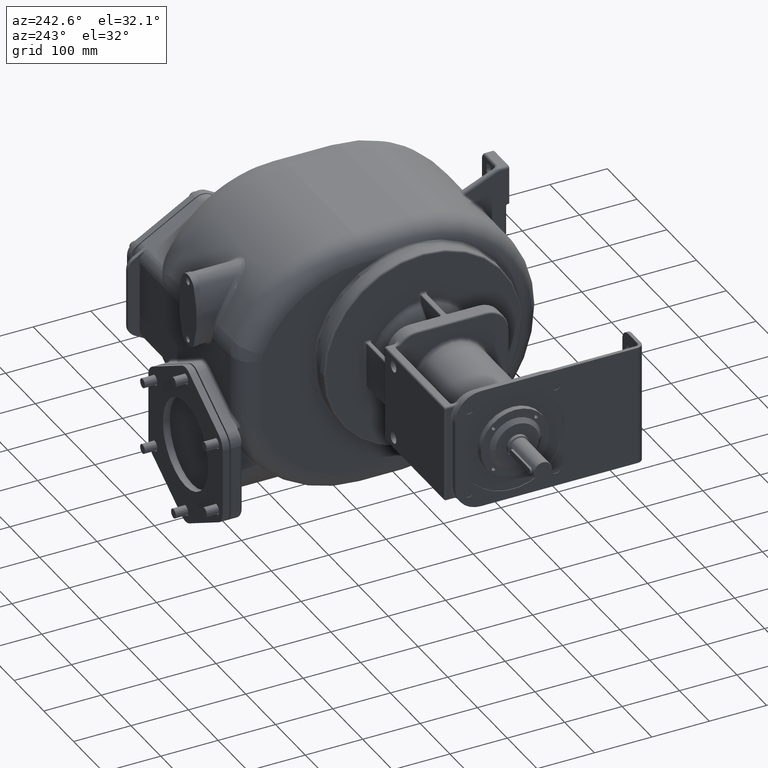
[diagram: clean part render]
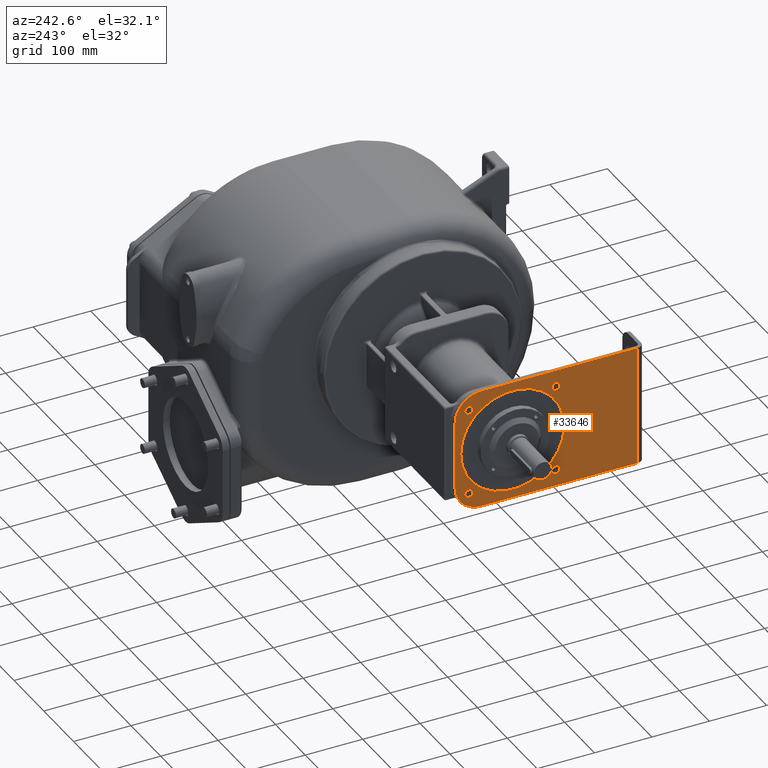
[diagram: same view with one face highlighted and labeled with its STEP entity id]
A machine part, auxiliary view. The second image highlights one B-rep face of the part: STEP entity #33646.
In plain terms, the highlighted planar face has unit normal (1, 0, 0).
Its self-contained STEP definition (entity closure, byte-faithful):
#10136=DIRECTION('',(0.E0,0.E0,1.E0));
#10137=VECTOR('',#10136,2.1E2);
#10138=CARTESIAN_POINT('',(-4.895E2,1.2E1,-1.05E2));
#10139=LINE('',#10138,#10137);
#10311=CARTESIAN_POINT('',(-4.895E2,2.85E2,-6.E1));
#10312=DIRECTION('',(1.E0,0.E0,0.E0));
#10313=DIRECTION('',(0.E0,2.273736754432E-14,-1.E0));
#10314=AXIS2_PLACEMENT_3D('',#10311,#10312,#10313);
#10316=DIRECTION('',(0.E0,0.E0,1.E0));
#10317=VECTOR('',#10316,1.2E2);
#10318=CARTESIAN_POINT('',(-4.895E2,3.3E2,-6.E1));
#10319=LINE('',#10318,#10317);
#10320=CARTESIAN_POINT('',(-4.895E2,2.85E2,6.E1));
#10321=DIRECTION('',(1.E0,0.E0,0.E0));
#10322=DIRECTION('',(0.E0,1.E0,0.E0));
#10323=AXIS2_PLACEMENT_3D('',#10320,#10321,#10322);
#10325=DIRECTION('',(0.E0,-1.E0,0.E0));
#10326=VECTOR('',#10325,2.73E2);
#10327=CARTESIAN_POINT('',(-4.895E2,2.85E2,1.05E2));
#10328=LINE('',#10327,#10326);
#10329=DIRECTION('',(0.E0,1.E0,0.E0));
#10330=VECTOR('',#10329,2.73E2);
#10331=CARTESIAN_POINT('',(-4.895E2,1.2E1,-1.05E2));
#10332=LINE('',#10331,#10330);
#10333=CARTESIAN_POINT('',(-4.895E2,2.3E2,0.E0));
#10334=DIRECTION('',(-1.E0,0.E0,0.E0));
#10335=DIRECTION('',(0.E0,-1.E0,0.E0));
#10336=AXIS2_PLACEMENT_3D('',#10333,#10334,#10335);
#10338=CARTESIAN_POINT('',(-4.895E2,2.3E2,0.E0));
#10339=DIRECTION('',(-1.E0,0.E0,0.E0));
#10340=DIRECTION('',(0.E0,1.E0,0.E0));
#10341=AXIS2_PLACEMENT_3D('',#10338,#10339,#10340);
#10343=CARTESIAN_POINT('',(-4.895E2,3.060139789776E2,-7.601397897755E1));
#10344=DIRECTION('',(-1.E0,0.E0,0.E0));
#10345=DIRECTION('',(0.E0,-1.E0,0.E0));
#10346=AXIS2_PLACEMENT_3D('',#10343,#10344,#10345);
#10348=CARTESIAN_POINT('',(-4.895E2,3.060139789776E2,-7.601397897755E1));
#10349=DIRECTION('',(-1.E0,0.E0,0.E0));
#10350=DIRECTION('',(0.E0,1.E0,0.E0));
#10351=AXIS2_PLACEMENT_3D('',#10348,#10349,#10350);
#10353=CARTESIAN_POINT('',(-4.895E2,1.539860210224E2,-7.601397897755E1));
#10354=DIRECTION('',(-1.E0,0.E0,0.E0));
#10355=DIRECTION('',(0.E0,0.E0,1.E0));
#10356=AXIS2_PLACEMENT_3D('',#10353,#10354,#10355);
#10358=CARTESIAN_POINT('',(-4.895E2,1.539860210224E2,-7.601397897755E1));
#10359=DIRECTION('',(-1.E0,0.E0,0.E0));
#10360=DIRECTION('',(0.E0,0.E0,-1.E0));
#10361=AXIS2_PLACEMENT_3D('',#10358,#10359,#10360);
#10363=CARTESIAN_POINT('',(-4.895E2,1.539860210224E2,7.601397897755E1));
#10364=DIRECTION('',(-1.E0,0.E0,0.E0));
#10365=DIRECTION('',(0.E0,1.E0,0.E0));
#10366=AXIS2_PLACEMENT_3D('',#10363,#10364,#10365);
#10368=CARTESIAN_POINT('',(-4.895E2,1.539860210224E2,7.601397897755E1));
#10369=DIRECTION('',(-1.E0,0.E0,0.E0));
#10370=DIRECTION('',(0.E0,-1.E0,0.E0));
#10371=AXIS2_PLACEMENT_3D('',#10368,#10369,#10370);
#10373=CARTESIAN_POINT('',(-4.895E2,3.060139789776E2,7.601397897755E1));
#10374=DIRECTION('',(-1.E0,0.E0,0.E0));
#10375=DIRECTION('',(0.E0,0.E0,-1.E0));
#10376=AXIS2_PLACEMENT_3D('',#10373,#10374,#10375);
#10378=CARTESIAN_POINT('',(-4.895E2,3.060139789776E2,7.601397897755E1));
#10379=DIRECTION('',(-1.E0,0.E0,0.E0));
#10380=DIRECTION('',(0.E0,0.E0,1.E0));
#10381=AXIS2_PLACEMENT_3D('',#10378,#10379,#10380);
#21385=CARTESIAN_POINT('',(-4.895E2,2.85E2,-1.05E2));
#21387=VERTEX_POINT('',#21385);
#21388=CARTESIAN_POINT('',(-4.895E2,1.398E2,0.E0));
#21389=CARTESIAN_POINT('',(-4.895E2,3.202E2,2.772628825556E-14));
#21390=VERTEX_POINT('',#21388);
#21391=VERTEX_POINT('',#21389);
#21396=CARTESIAN_POINT('',(-4.895E2,1.2E1,-1.05E2));
#21397=VERTEX_POINT('',#21396);
#21398=CARTESIAN_POINT('',(-4.895E2,1.2E1,1.05E2));
#21399=VERTEX_POINT('',#21398);
#21400=CARTESIAN_POINT('',(-4.895E2,2.85E2,1.05E2));
#21401=VERTEX_POINT('',#21400);
#21444=CARTESIAN_POINT('',(-4.895E2,3.3E2,-6.E1));
#21445=VERTEX_POINT('',#21444);
#21446=CARTESIAN_POINT('',(-4.895E2,3.3E2,6.E1));
#21447=VERTEX_POINT('',#21446);
#21448=CARTESIAN_POINT('',(-4.895E2,2.990139789776E2,-7.601397897755E1));
#21449=CARTESIAN_POINT('',(-4.895E2,3.130139789776E2,-7.601397897755E1));
#21450=VERTEX_POINT('',#21448);
#21451=VERTEX_POINT('',#21449);
#21452=CARTESIAN_POINT('',(-4.895E2,1.539860210224E2,-6.901397897755E1));
#21453=CARTESIAN_POINT('',(-4.895E2,1.539860210224E2,-8.301397897755E1));
#21454=VERTEX_POINT('',#21452);
#21455=VERTEX_POINT('',#21453);
#21456=CARTESIAN_POINT('',(-4.895E2,1.609860210224E2,7.601397897755E1));
#21457=CARTESIAN_POINT('',(-4.895E2,1.469860210224E2,7.601397897755E1));
#21458=VERTEX_POINT('',#21456);
#21459=VERTEX_POINT('',#21457);
#21460=CARTESIAN_POINT('',(-4.895E2,3.060139789776E2,6.901397897755E1));
#21461=CARTESIAN_POINT('',(-4.895E2,3.060139789776E2,8.301397897755E1));
#21462=VERTEX_POINT('',#21460);
#21463=VERTEX_POINT('',#21461);
#33603=CARTESIAN_POINT('',(-4.895E2,2.3E2,0.E0));
#33604=DIRECTION('',(1.E0,0.E0,0.E0));
#33605=DIRECTION('',(0.E0,0.E0,-1.E0));
#33606=AXIS2_PLACEMENT_3D('',#33603,#33604,#33605);
#33607=PLANE('',#33606);
#33608=ORIENTED_EDGE('',*,*,#33596,.T.);
#33609=ORIENTED_EDGE('',*,*,#33337,.T.);
#33610=ORIENTED_EDGE('',*,*,#33357,.T.);
#33611=ORIENTED_EDGE('',*,*,#33370,.T.);
#33612=ORIENTED_EDGE('',*,*,#33400,.F.);
#33613=ORIENTED_EDGE('',*,*,#33584,.T.);
#33614=EDGE_LOOP('',(#33608,#33609,#33610,#33611,#33612,#33613));
#33615=FACE_OUTER_BOUND('',#33614,.F.);
#33617=ORIENTED_EDGE('',*,*,#33616,.T.);
#33619=ORIENTED_EDGE('',*,*,#33618,.T.);
#33620=EDGE_LOOP('',(#33617,#33619));
#33621=FACE_BOUND('',#33620,.F.);
#33623=ORIENTED_EDGE('',*,*,#33622,.T.);
#33625=ORIENTED_EDGE('',*,*,#33624,.T.);
#33626=EDGE_LOOP('',(#33623,#33625));
#33627=FACE_BOUND('',#33626,.F.);
#33629=ORIENTED_EDGE('',*,*,#33628,.T.);
#33631=ORIENTED_EDGE('',*,*,#33630,.T.);
#33632=EDGE_LOOP('',(#33629,#33631));
#33633=FACE_BOUND('',#33632,.F.);
#33635=ORIENTED_EDGE('',*,*,#33634,.T.);
#33637=ORIENTED_EDGE('',*,*,#33636,.T.);
#33638=EDGE_LOOP('',(#33635,#33637));
#33639=FACE_BOUND('',#33638,.F.);
#33641=ORIENTED_EDGE('',*,*,#33640,.T.);
#33643=ORIENTED_EDGE('',*,*,#33642,.T.);
#33644=EDGE_LOOP('',(#33641,#33643));
#33645=FACE_BOUND('',#33644,.F.);
#33646=ADVANCED_FACE('',(#33615,#33621,#33627,#33633,#33639,#33645),#33607,.F.);
#10315=CIRCLE('',#10314,4.5E1);
#10324=CIRCLE('',#10323,4.5E1);
#10337=CIRCLE('',#10336,9.02E1);
#10342=CIRCLE('',#10341,9.02E1);
#10347=CIRCLE('',#10346,7.E0);
#10352=CIRCLE('',#10351,7.E0);
#10357=CIRCLE('',#10356,7.E0);
#10362=CIRCLE('',#10361,7.E0);
#10367=CIRCLE('',#10366,7.E0);
#10372=CIRCLE('',#10371,7.E0);
#10377=CIRCLE('',#10376,7.E0);
#10382=CIRCLE('',#10381,7.E0);
#33337=EDGE_CURVE('',#21445,#21447,#10319,.T.);
#33357=EDGE_CURVE('',#21447,#21401,#10324,.T.);
#33370=EDGE_CURVE('',#21401,#21399,#10328,.T.);
#33400=EDGE_CURVE('',#21397,#21399,#10139,.T.);
#33584=EDGE_CURVE('',#21397,#21387,#10332,.T.);
#33596=EDGE_CURVE('',#21387,#21445,#10315,.T.);
#33616=EDGE_CURVE('',#21390,#21391,#10337,.T.);
#33618=EDGE_CURVE('',#21391,#21390,#10342,.T.);
#33622=EDGE_CURVE('',#21450,#21451,#10347,.T.);
#33624=EDGE_CURVE('',#21451,#21450,#10352,.T.);
#33628=EDGE_CURVE('',#21454,#21455,#10357,.T.);
#33630=EDGE_CURVE('',#21455,#21454,#10362,.T.);
#33634=EDGE_CURVE('',#21458,#21459,#10367,.T.);
#33636=EDGE_CURVE('',#21459,#21458,#10372,.T.);
#33640=EDGE_CURVE('',#21462,#21463,#10377,.T.);
#33642=EDGE_CURVE('',#21463,#21462,#10382,.T.);